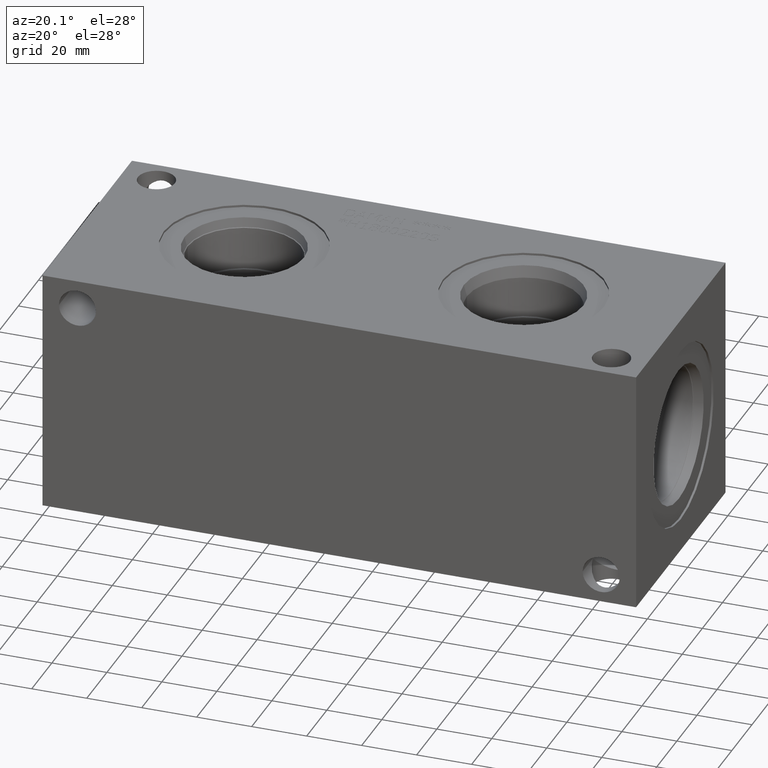
[diagram: clean part render]
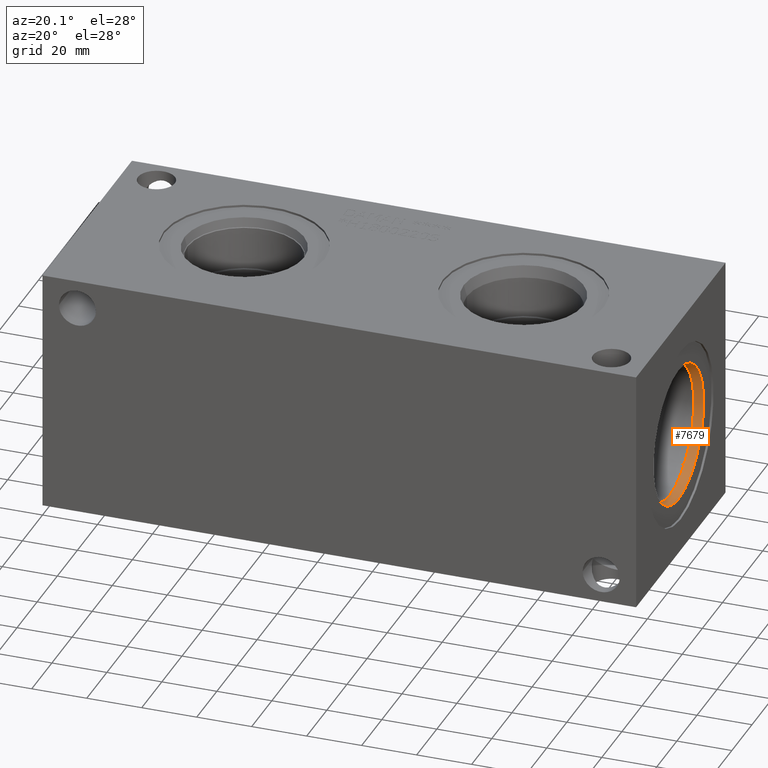
[diagram: same view with one face highlighted and labeled with its STEP entity id]
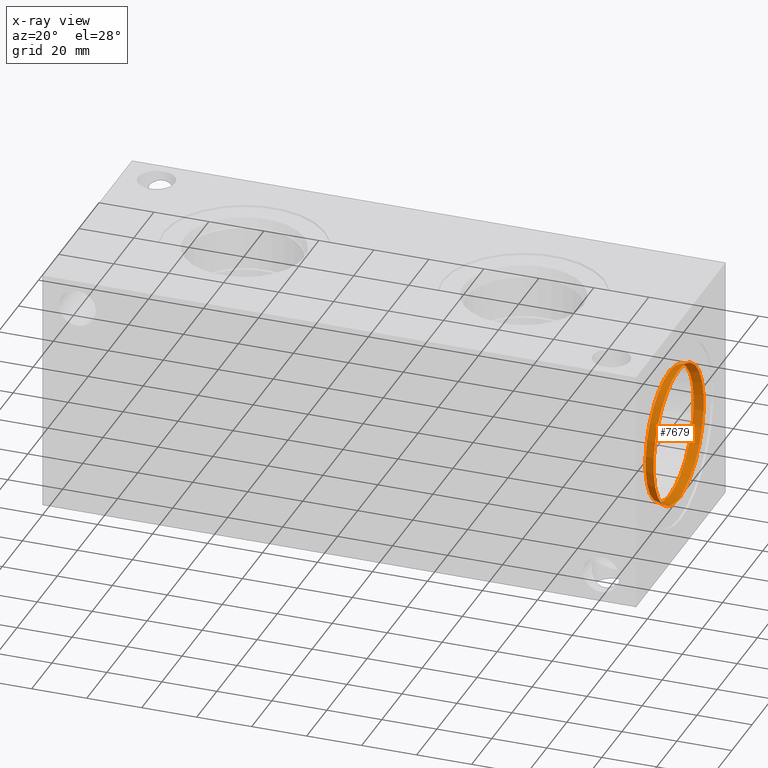
[diagram: x-ray of the same camera — body ghosted, the highlighted face saturated]
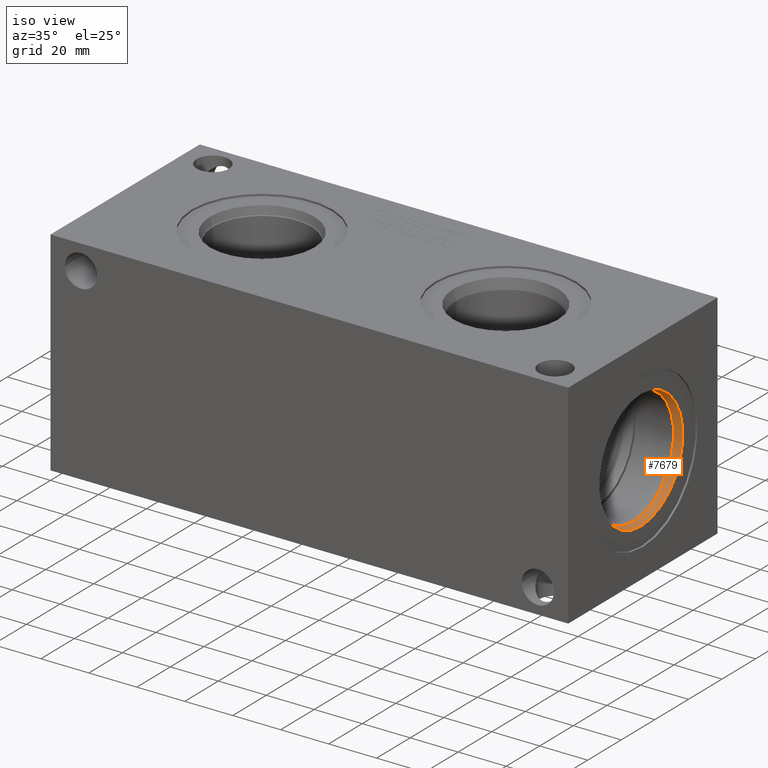
[diagram: same view with one face highlighted and labeled with its STEP entity id]
A machine part, auxiliary view. The second image highlights one B-rep face of the part: STEP entity #7679.
The next image is the same camera in x-ray: the body ghosted, the highlighted face saturated — about 0% of this face is hidden behind the body in this view.
A second angle (iso view) of the same face is appended — the face is thin or edge-on in the first view.
In plain terms, the highlighted conical surface has half-angle 15.031 deg.
Its self-contained STEP definition (entity closure, byte-faithful):
#41=CONICAL_SURFACE('',#8089,24.46655,0.262336001092615);
#182=CIRCLE('',#8087,24.9047);
#183=CIRCLE('',#8088,24.9047);
#184=CIRCLE('',#8090,24.0284);
#185=CIRCLE('',#8091,24.0284);
#960=FACE_OUTER_BOUND('',#1392,.T.);
#1392=EDGE_LOOP('',(#6670,#6671,#6672,#6673,#6674,#6675));
#2118=LINE('',#13323,#2832);
#2832=VECTOR('',#9583,24.46655);
#3538=VERTEX_POINT('',#13317);
#3539=VERTEX_POINT('',#13318);
#3540=VERTEX_POINT('',#13322);
#3541=VERTEX_POINT('',#13324);
#4594=EDGE_CURVE('',#3538,#3539,#182,.T.);
#4595=EDGE_CURVE('',#3539,#3538,#183,.T.);
#4596=EDGE_CURVE('',#3539,#3540,#2118,.T.);
#4597=EDGE_CURVE('',#3540,#3541,#184,.T.);
#4598=EDGE_CURVE('',#3541,#3540,#185,.T.);
#6670=ORIENTED_EDGE('',*,*,#4594,.F.);
#6671=ORIENTED_EDGE('',*,*,#4595,.F.);
#6672=ORIENTED_EDGE('',*,*,#4596,.T.);
#6673=ORIENTED_EDGE('',*,*,#4597,.T.);
#6674=ORIENTED_EDGE('',*,*,#4598,.T.);
#6675=ORIENTED_EDGE('',*,*,#4596,.F.);
#7679=ADVANCED_FACE('',(#960),#41,.F.);
#8087=AXIS2_PLACEMENT_3D('',#13319,#9577,#9578);
#8088=AXIS2_PLACEMENT_3D('',#13320,#9579,#9580);
#8089=AXIS2_PLACEMENT_3D('',#13321,#9581,#9582);
#8090=AXIS2_PLACEMENT_3D('',#13325,#9584,#9585);
#8091=AXIS2_PLACEMENT_3D('',#13326,#9586,#9587);
#9577=DIRECTION('center_axis',(-1.,0.,0.));
#9578=DIRECTION('ref_axis',(0.,0.,1.));
#9579=DIRECTION('center_axis',(-1.,0.,0.));
#9580=DIRECTION('ref_axis',(0.,0.,1.));
#9581=DIRECTION('center_axis',(1.,0.,0.));
#9582=DIRECTION('ref_axis',(0.,0.,-1.));
#9583=DIRECTION('',(-0.965786801484514,-3.17596638986036E-17,-0.259337336452567));
#9584=DIRECTION('center_axis',(-1.,0.,0.));
#9585=DIRECTION('ref_axis',(0.,0.,1.));
#9586=DIRECTION('center_axis',(-1.,0.,0.));
#9587=DIRECTION('ref_axis',(0.,0.,1.));
#13317=CARTESIAN_POINT('',(215.1126,44.45,19.5453));
#13318=CARTESIAN_POINT('',(215.1126,44.45,69.3547));
#13319=CARTESIAN_POINT('Origin',(215.1126,44.45,44.45));
#13320=CARTESIAN_POINT('Origin',(215.1126,44.45,44.45));
#13321=CARTESIAN_POINT('Origin',(213.4809048,44.45,44.45));
#13322=CARTESIAN_POINT('',(211.8492096,44.45,68.4784));
#13323=CARTESIAN_POINT('',(213.4809048,44.45,68.91655));
#13324=CARTESIAN_POINT('',(211.8492096,44.45,20.4216));
#13325=CARTESIAN_POINT('Origin',(211.8492096,44.45,44.45));
#13326=CARTESIAN_POINT('Origin',(211.8492096,44.45,44.45));